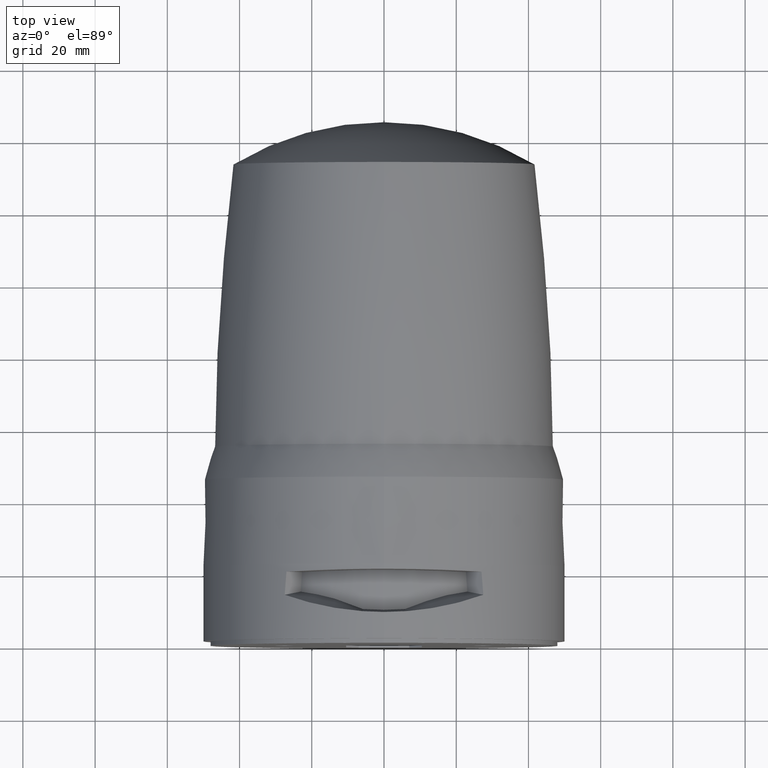
[diagram: clean part render]
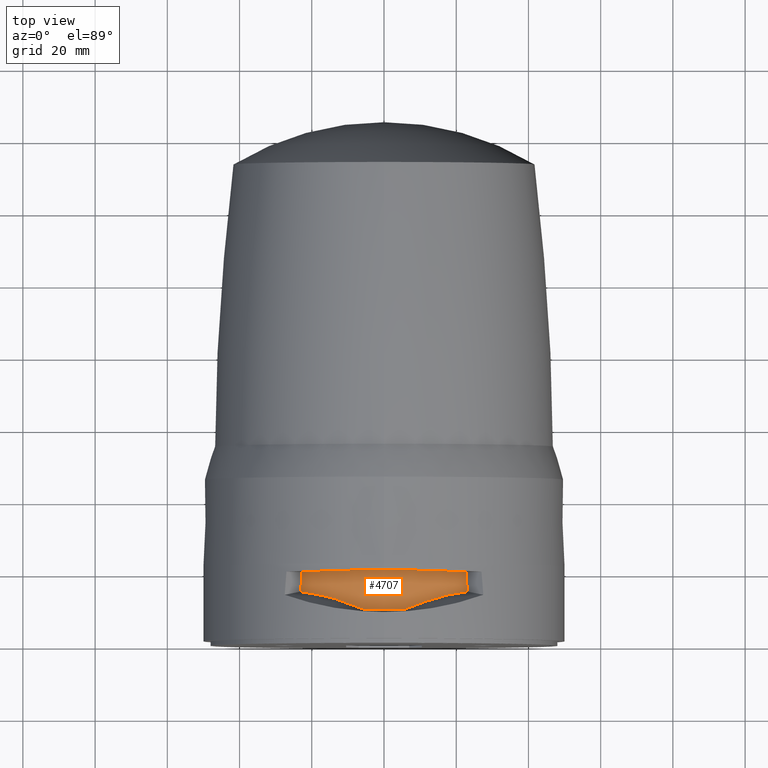
[diagram: same view with one face highlighted and labeled with its STEP entity id]
A machine part, top view. The second image highlights one B-rep face of the part: STEP entity #4707.
In plain terms, the highlighted cylindrical surface (partial cylindrical patch) has radius 45 mm, axis along (0, 1, 0).
Its self-contained STEP definition (entity closure, byte-faithful):
#273 = B_SPLINE_CURVE_WITH_KNOTS ( 'NONE', 3,
 ( #10234, #8233, #13553, #5959 ),
 .UNSPECIFIED., .F., .F.,
 ( 4, 4 ),
 ( 0.000000000000000000, 1.000000000000000000 ),
 .UNSPECIFIED. ) ;
#405 = CARTESIAN_POINT ( 'NONE',  ( -11.84227999931658637, 20.13844801156305309, 43.41382988349019456 ) ) ;
#478 = CARTESIAN_POINT ( 'NONE',  ( -13.61859326529472192, 20.09246608839858084, 42.89247271123664973 ) ) ;
#492 = CARTESIAN_POINT ( 'NONE',  ( 17.47202003937134052, 13.32290729893481540, 41.47693349906018767 ) ) ;
#543 = CARTESIAN_POINT ( 'NONE',  ( -7.108346958404923477, 20.23015040799696962, 44.43572263607795492 ) ) ;
#590 = VERTEX_POINT ( 'NONE', #4851 ) ;
#606 = CARTESIAN_POINT ( 'NONE',  ( -11.81381435198009733, 20.13913577782215114, 43.42158459702788775 ) ) ;
#614 = CARTESIAN_POINT ( 'NONE',  ( -22.68385494245774936, 19.75717980351269887, 38.86441463536455387 ) ) ;
#677 = CARTESIAN_POINT ( 'NONE',  ( -0.4474314387408208638, 20.28148104778522054, 44.99806994582864661 ) ) ;
#739 = FACE_OUTER_BOUND ( 'NONE', #11546, .T. ) ;
#819 = CARTESIAN_POINT ( 'NONE',  ( -20.32310649052906726, 13.86176357159585137, 40.17978063508935094 ) ) ;
#891 = CARTESIAN_POINT ( 'NONE',  ( -16.04546611978050308, 13.03156904659603121, 42.06981511062953416 ) ) ;
#960 = CARTESIAN_POINT ( 'NONE',  ( 11.69101140142844386, 11.61625066659239458, 43.46128276996401496 ) ) ;
#1252 = ORIENTED_EDGE ( 'NONE', *, *, #7621, .F. ) ;
#1372 = CARTESIAN_POINT ( 'NONE',  ( -17.45062764641732400, 19.97079657228621130, 41.47863168058091787 ) ) ;
#1444 = CARTESIAN_POINT ( 'NONE',  ( -9.764286546340825268, 20.18527098869021685, 43.93923810953449305 ) ) ;
#1510 = CARTESIAN_POINT ( 'NONE',  ( -12.18426669837315757, 20.13007846549800561, 43.31937539521679525 ) ) ;
#1577 = CARTESIAN_POINT ( 'NONE',  ( -6.348193231950924442, 20.24057074130339728, 44.55025150755220409 ) ) ;
#1643 = CARTESIAN_POINT ( 'NONE',  ( -8.300912586125775761, 20.21155618623086170, 44.23069851903699146 ) ) ;
#1707 = CARTESIAN_POINT ( 'NONE',  ( 10.87144729791653042, 20.16120484420215675, 43.66846997721839330 ) ) ;
#1716 = CARTESIAN_POINT ( 'NONE',  ( -7.336427481138954043, 9.908226507313999676, 44.40425105732058597 ) ) ;
#1781 = CARTESIAN_POINT ( 'NONE',  ( 23.07456759984749795, 14.32713572513618061, 38.63372011701785169 ) ) ;
#1906 = DIRECTION ( 'NONE',  ( -1.000000000000000000, 0.000000000000000000, 0.000000000000000000 ) ) ;
#1920 = CARTESIAN_POINT ( 'NONE',  ( 13.13326848133772273, 12.14672568946019382, 43.04741695614502106 ) ) ;
#1928 = B_SPLINE_CURVE_WITH_KNOTS ( 'NONE', 3,
 ( #2783, #9119, #3949, #13405, #6976, #4922 ),
 .UNSPECIFIED., .F., .F.,
 ( 4, 2, 4 ),
 ( 0.000000000000000000, 0.5000000000000000000, 1.000000000000000000 ),
 .UNSPECIFIED. ) ;
#2124 = CARTESIAN_POINT ( 'NONE',  ( 7.330817702946668568, 9.906218642812557817, 44.40513177967530112 ) ) ;
#2516 = B_SPLINE_CURVE_WITH_KNOTS ( 'NONE', 3,
 ( #6944, #11168, #11300, #13306 ),
 .UNSPECIFIED., .F., .F.,
 ( 4, 4 ),
 ( 0.02008847092973000195, 0.02014648777180919753 ),
 .UNSPECIFIED. ) ;
#2551 = CARTESIAN_POINT ( 'NONE',  ( 11.72111557423630046, 20.14147446952945941, 43.44669752839927668 ) ) ;
#2615 = CARTESIAN_POINT ( 'NONE',  ( 10.49513001006209478, 20.16936982621216146, 43.75991380163826250 ) ) ;
#2686 = CARTESIAN_POINT ( 'NONE',  ( 15.08837701329801106, 20.05260262494076784, 42.44155854232884906 ) ) ;
#2749 = CARTESIAN_POINT ( 'NONE',  ( -6.755319006678095484, 20.23519244297324704, 44.49117922385988066 ) ) ;
#2783 = CARTESIAN_POINT ( 'NONE',  ( -5.835167098255180207, 9.396942779877718976, 44.62007196505935269 ) ) ;
#2817 = CARTESIAN_POINT ( 'NONE',  ( 11.53204365006813781, 20.14597508731123909, 43.49735422020866338 ) ) ;
#2826 = CARTESIAN_POINT ( 'NONE',  ( -17.48606636844611018, 13.33383861294100470, 41.49314295480139236 ) ) ;
#2981 = ORIENTED_EDGE ( 'NONE', *, *, #12461, .T. ) ;
#3109 = CARTESIAN_POINT ( 'NONE',  ( 23.07456759984749795, 14.32713572513618061, 38.63372011701785169 ) ) ;
#3377 = CARTESIAN_POINT ( 'NONE',  ( -17.37355232813078842, 19.97353012843244713, 41.51095932691494284 ) ) ;
#3445 = CARTESIAN_POINT ( 'NONE',  ( -17.53553160300661773, 19.96777367400675018, 41.44285628955167056 ) ) ;
#3585 = CARTESIAN_POINT ( 'NONE',  ( -6.044950432993923428, 20.24438795144969205, 44.59215274847466759 ) ) ;
#3599 = CARTESIAN_POINT ( 'NONE',  ( 20.32867369142970304, 13.86279336092435521, 40.17718726464759271 ) ) ;
#3652 = CARTESIAN_POINT ( 'NONE',  ( -5.973015986555767043, 20.24526982200256597, 44.60183060656434151 ) ) ;
#3665 = CARTESIAN_POINT ( 'NONE',  ( 15.30072295266442772, 12.81380023081596953, 42.32578259448999347 ) ) ;
#3677 = EDGE_CURVE ( 'NONE', #590, #12252, #2516, .T. ) ;
#3716 = CARTESIAN_POINT ( 'NONE',  ( 9.743757488905458786, 20.18509334203292838, 43.93571207299783055 ) ) ;
#3785 = CARTESIAN_POINT ( 'NONE',  ( -6.001781105626609936, 20.24491794523314425, 44.59796909222418293 ) ) ;
#3793 = CARTESIAN_POINT ( 'NONE',  ( -6.591373112126814426, 9.642633378146747702, 44.52117954295964353 ) ) ;
#3842 = CARTESIAN_POINT ( 'NONE',  ( 11.69747340798244650, 20.14204075323819509, 43.45307364410666651 ) ) ;
#3852 = CARTESIAN_POINT ( 'NONE',  ( -23.07456673256490021, 14.32713740382510004, 38.63372184351669603 ) ) ;
#3949 = CARTESIAN_POINT ( 'NONE',  ( -1.980107783807446564, 9.166439997265158013, 44.99998205436671128 ) ) ;
#4405 = CARTESIAN_POINT ( 'NONE',  ( -17.70656729597715184, 19.96164686148595635, 41.37026271727327753 ) ) ;
#4413 = EDGE_CURVE ( 'NONE', #12721, #6918, #1928, .T. ) ;
#4596 = CARTESIAN_POINT ( 'NONE',  ( 22.68669821129580200, 19.73812288906085044, 38.86275511473390054 ) ) ;
#4616 = CARTESIAN_POINT ( 'NONE',  ( 11.73687790586002322, 20.14109654361994828, 43.44244198636407361 ) ) ;
#4651 = EDGE_CURVE ( 'NONE', #12252, #7370, #12296, .T. ) ;
#4686 = CARTESIAN_POINT ( 'NONE',  ( 9.244524971810312408, 20.19476716224312796, 44.04345956278331897 ) ) ;
#4703 = ORIENTED_EDGE ( 'NONE', *, *, #4413, .T. ) ;
#4707 = ADVANCED_FACE ( 'NONE', ( #739 ), #9354, .T. ) ;
#4753 = CARTESIAN_POINT ( 'NONE',  ( 11.31164629407964561, 20.15114178006222190, 43.55545799119414596 ) ) ;
#4851 = CARTESIAN_POINT ( 'NONE',  ( -22.69233895745735197, 19.69999999999999929, 38.85946155880014885 ) ) ;
#4922 = CARTESIAN_POINT ( 'NONE',  ( 5.835173014087679633, 9.396888925484050858, 44.62007121915029728 ) ) ;
#5099 = CARTESIAN_POINT ( 'NONE',  ( 8.798793948397360509, 10.46118286204745473, 44.13771450378703776 ) ) ;
#5192 = CARTESIAN_POINT ( 'NONE',  ( -21.68691499671024303, 19.80313757112707052, 39.44629503489869649 ) ) ;
#5293 = CARTESIAN_POINT ( 'NONE',  ( 22.68385494245735146, 19.75717980351450009, 38.86441463536475283 ) ) ;
#5298 = ORIENTED_EDGE ( 'NONE', *, *, #10455, .F. ) ;
#5393 = ORIENTED_EDGE ( 'NONE', *, *, #3677, .F. ) ;
#5606 = CARTESIAN_POINT ( 'NONE',  ( 22.69233896038864984, 19.69999999999999929, 38.85946155708834482 ) ) ;
#5623 = CARTESIAN_POINT ( 'NONE',  ( 22.68952621902035105, 19.71906295528859943, 38.86110408320630683 ) ) ;
#5689 = CARTESIAN_POINT ( 'NONE',  ( 5.835173014087679633, 9.396888925484050858, 44.62007121915029728 ) ) ;
#5715 = CARTESIAN_POINT ( 'NONE',  ( -2.475719259794731286, 20.27564768032336318, 44.93452449260052362 ) ) ;
#5728 = CARTESIAN_POINT ( 'NONE',  ( 21.72079082017842211, 14.09148404172576363, 39.44228356167082694 ) ) ;
#5786 = CARTESIAN_POINT ( 'NONE',  ( 11.74636118767424797, 20.14086889875486008, 43.43987846727977598 ) ) ;
#5915 = CARTESIAN_POINT ( 'NONE',  ( 18.75131896174210766, 19.92621291701665953, 40.95497039585611532 ) ) ;
#5959 = CARTESIAN_POINT ( 'NONE',  ( -23.07456673256490021, 14.32713740382510004, 38.63372184351669603 ) ) ;
#5997 = CARTESIAN_POINT ( 'NONE',  ( -5.835167098255180207, 9.396942779877718976, 44.62007196505935269 ) ) ;
#6056 = CARTESIAN_POINT ( 'NONE',  ( 22.95630234514583989, 17.91102563564936645, 38.70531771772397889 ) ) ;
#6133 = CARTESIAN_POINT ( 'NONE',  ( 10.97021764374691521, 11.32823107382306205, 43.64865744905547729 ) ) ;
#6134 = CARTESIAN_POINT ( 'NONE',  ( -23.07456673256490021, 14.32713740382510004, 38.63372184351669603 ) ) ;
#6200 = CARTESIAN_POINT ( 'NONE',  ( 13.85475107366735514, 12.38844558904360760, 42.82090456537481060 ) ) ;
#6480 = CARTESIAN_POINT ( 'NONE',  ( 22.68385494245735146, 19.75717980351450009, 38.86441463536475283 ) ) ;
#6604 = CARTESIAN_POINT ( 'NONE',  ( -22.68385494245774936, 19.75717980351269887, 38.86441463536455387 ) ) ;
#6743 = CARTESIAN_POINT ( 'NONE',  ( -11.80128016369711830, 20.13943814518961162, 43.42499348231668677 ) ) ;
#6811 = CARTESIAN_POINT ( 'NONE',  ( -15.47638757500100759, 20.03794450039711350, 42.26635557363588447 ) ) ;
#6872 = CARTESIAN_POINT ( 'NONE',  ( -3.955888331365400745, 20.26669100317144512, 44.83665377533303342 ) ) ;
#6918 = VERTEX_POINT ( 'NONE', #5689 ) ;
#6942 = CARTESIAN_POINT ( 'NONE',  ( 1.877760257181229298, 20.27903999960852488, 44.97145850997019068 ) ) ;
#6944 = CARTESIAN_POINT ( 'NONE',  ( -22.69233895745735197, 19.69999999999999929, 38.85946155880014885 ) ) ;
#6976 = CARTESIAN_POINT ( 'NONE',  ( 3.929725068646205077, 9.242985367429485066, 44.86925546009849342 ) ) ;
#7009 = CARTESIAN_POINT ( 'NONE',  ( -4.592996408837750682E-44, 1.197999999999999954, 5.925591757886279539E-16 ) ) ;
#7090 = CARTESIAN_POINT ( 'NONE',  ( -13.88143112648262445, 12.39693140413350925, 42.81223483411741881 ) ) ;
#7094 = CARTESIAN_POINT ( 'NONE',  ( 9.524671975889241082, 10.75104256380412160, 43.98672067803956764 ) ) ;
#7370 = VERTEX_POINT ( 'NONE', #6480 ) ;
#7621 = EDGE_CURVE ( 'NONE', #9710, #6918, #12361, .T. ) ;
#7645 = CARTESIAN_POINT ( 'NONE',  ( -17.40832938214171577, 19.97229795535639241, 41.49639008214651170 ) ) ;
#7785 = CARTESIAN_POINT ( 'NONE',  ( -12.92840454635192948, 20.11102006801234410, 43.10352791130546990 ) ) ;
#7853 = CARTESIAN_POINT ( 'NONE',  ( -0.8771358370383675052, 20.28097932941360781, 44.99262666301878255 ) ) ;
#7913 = CARTESIAN_POINT ( 'NONE',  ( -11.88498546005452816, 20.13741432407068288, 43.40217337059469571 ) ) ;
#7982 = CARTESIAN_POINT ( 'NONE',  ( -4.946682115903085375, 20.25773433912778998, 44.73860953100828652 ) ) ;
#8049 = CARTESIAN_POINT ( 'NONE',  ( -11.98468049749338427, 20.13498810790766669, 43.37480342947512213 ) ) ;
#8088 = B_SPLINE_CURVE_WITH_KNOTS ( 'NONE', 3,
 ( #9432, #5623, #4596, #5293 ),
 .UNSPECIFIED., .F., .F.,
 ( 4, 4 ),
 ( 0.02006860106515724954, 0.02012661791550789808 ),
 .UNSPECIFIED. ) ;
#8125 = CARTESIAN_POINT ( 'NONE',  ( 23.08292284289445462, 16.12007087736142807, 38.62872982304882186 ) ) ;
#8233 = CARTESIAN_POINT ( 'NONE',  ( -22.95630273479275729, 17.91102235810859966, 38.70531749021279211 ) ) ;
#8266 = CARTESIAN_POINT ( 'NONE',  ( -8.809702371444803504, 10.46542092983013994, 44.13558455797462443 ) ) ;
#8362 = CARTESIAN_POINT ( 'NONE',  ( -19.41129881672941693, 19.89742785806415171, 40.60133445584583711 ) ) ;
#8560 = VERTEX_POINT ( 'NONE', #5606 ) ;
#8623 = CARTESIAN_POINT ( 'NONE',  ( -17.39023451904800410, 19.97293925474831155, 41.50397323229974944 ) ) ;
#8770 = ORIENTED_EDGE ( 'NONE', *, *, #9015, .T. ) ;
#8826 = CARTESIAN_POINT ( 'NONE',  ( -6.145830187613428919, 20.24313601550825226, 44.57841228826514879 ) ) ;
#8890 = CARTESIAN_POINT ( 'NONE',  ( 11.64231768472713746, 20.14335784577834332, 43.46790089498949783 ) ) ;
#9015 = EDGE_CURVE ( 'NONE', #590, #12046, #273, .T. ) ;
#9020 = CARTESIAN_POINT ( 'NONE',  ( -5.959859876715237981, 20.24543022770979661, 44.60359086148300634 ) ) ;
#9084 = CARTESIAN_POINT ( 'NONE',  ( 22.68385494245735146, 19.75717980351450009, 38.86441463536475283 ) ) ;
#9119 = CARTESIAN_POINT ( 'NONE',  ( -3.928903099187118553, 9.243328333422386578, 44.86936269594036730 ) ) ;
#9233 = CARTESIAN_POINT ( 'NONE',  ( 6.588498513759169839, 9.641699224054431028, 44.52155564274019639 ) ) ;
#9354 = CYLINDRICAL_SURFACE ( 'NONE', #10690, 45.00000000000000000 ) ;
#9432 = CARTESIAN_POINT ( 'NONE',  ( 22.69233896038864984, 19.69999999999999929, 38.85946155708834482 ) ) ;
#9646 = CARTESIAN_POINT ( 'NONE',  ( -18.05353416591015403, 19.94906526462957430, 41.22083624520359280 ) ) ;
#9710 = VERTEX_POINT ( 'NONE', #3109 ) ;
#9759 = ORIENTED_EDGE ( 'NONE', *, *, #4651, .F. ) ;
#9923 = CARTESIAN_POINT ( 'NONE',  ( -0.2326389474847913308, 20.28161082205240717, 44.99947232919016216 ) ) ;
#9938 = CARTESIAN_POINT ( 'NONE',  ( 18.19311401255323801, 13.46541124992836203, 41.16583462246379099 ) ) ;
#9992 = CARTESIAN_POINT ( 'NONE',  ( -12.58422585428273344, 20.12002958182351975, 43.20574658410210844 ) ) ;
#10060 = CARTESIAN_POINT ( 'NONE',  ( -1.245709450860991163, 20.28013366689715724, 44.98342645905845671 ) ) ;
#10234 = CARTESIAN_POINT ( 'NONE',  ( -22.69233895745735197, 19.69999999999999929, 38.85946155880014885 ) ) ;
#10344 = CARTESIAN_POINT ( 'NONE',  ( 5.835173014087679633, 9.396888925484050858, 44.62007121915029728 ) ) ;
#10455 = EDGE_CURVE ( 'NONE', #12721, #12046, #11418, .T. ) ;
#10685 = CARTESIAN_POINT ( 'NONE',  ( -18.98171417658942062, 19.91418182994908648, 40.80342480558029195 ) ) ;
#10690 = AXIS2_PLACEMENT_3D ( 'NONE', #7009, #12403, #1906 ) ;
#10752 = CARTESIAN_POINT ( 'NONE',  ( -16.41654740873860518, 20.00739552575010549, 41.91129284402511956 ) ) ;
#10827 = CARTESIAN_POINT ( 'NONE',  ( -18.35927240941600758, 19.93770535729101923, 41.08525303329923872 ) ) ;
#10895 = CARTESIAN_POINT ( 'NONE',  ( 13.36041894237212801, 20.10209114567265942, 43.00317849628144273 ) ) ;
#10960 = CARTESIAN_POINT ( 'NONE',  ( -0.1405962295635562465, 20.28164050663709972, 44.99979100208659588 ) ) ;
#11031 = CARTESIAN_POINT ( 'NONE',  ( -7.819668991822037896, 20.21947052661496258, 44.31808601547342619 ) ) ;
#11102 = CARTESIAN_POINT ( 'NONE',  ( 7.751355206678907983, 20.22142083395284118, 44.33944208168064449 ) ) ;
#11166 = CARTESIAN_POINT ( 'NONE',  ( 6.761941921118959087, 20.23603411574966415, 44.50043404860421958 ) ) ;
#11168 = CARTESIAN_POINT ( 'NONE',  ( -22.68952621706609918, 19.71906295524025055, 38.86110408434725372 ) ) ;
#11175 = CARTESIAN_POINT ( 'NONE',  ( -9.538146760943771341, 10.75642974557321097, 43.98384606255203977 ) ) ;
#11300 = CARTESIAN_POINT ( 'NONE',  ( -22.68669821031885192, 19.73812288901185141, 38.86275511530409688 ) ) ;
#11418 = B_SPLINE_CURVE_WITH_KNOTS ( 'NONE', 3,
 ( #5997, #3793, #1716, #8266, #11175, #13248, #12277, #12482, #7090, #891, #2826, #819, #12206, #3852 ),
 .UNSPECIFIED., .F., .F.,
 ( 4, 2, 2, 2, 2, 2, 4 ),
 ( 3.127317220692751144E-18, 0.002396455518847635021, 0.004792911037695267440, 0.007189366556542898558, 0.009585822075390531410, 0.01437873311308579538, 0.01917164415078106282 ),
 .UNSPECIFIED. ) ;
#11518 = ORIENTED_EDGE ( 'NONE', *, *, #12478, .T. ) ;
#11546 = EDGE_LOOP ( 'NONE', ( #2981, #11518, #9759, #5393, #8770, #5298, #4703, #1252 ) ) ;
#12000 = CARTESIAN_POINT ( 'NONE',  ( 0.9225804933863229751, 20.28169834676485905, 45.00036997598439825 ) ) ;
#12046 = VERTEX_POINT ( 'NONE', #6134 ) ;
#12062 = B_SPLINE_CURVE_WITH_KNOTS ( 'NONE', 3,
 ( #1781, #8125, #6056, #12343 ),
 .UNSPECIFIED., .F., .F.,
 ( 4, 4 ),
 ( 0.000000000000000000, 1.000000000000000000 ),
 .UNSPECIFIED. ) ;
#12067 = CARTESIAN_POINT ( 'NONE',  ( 3.812661482437630145, 20.26780800014777029, 44.84888425699715953 ) ) ;
#12136 = CARTESIAN_POINT ( 'NONE',  ( -10.76618955214289386, 20.16435663344034879, 43.70588451819825337 ) ) ;
#12195 = CARTESIAN_POINT ( 'NONE',  ( -14.08116085057534583, 20.07938342336102622, 42.74294689204494802 ) ) ;
#12206 = CARTESIAN_POINT ( 'NONE',  ( -21.72116206023656915, 14.09154866938236772, 39.44206177794900015 ) ) ;
#12252 = VERTEX_POINT ( 'NONE', #614 ) ;
#12267 = CARTESIAN_POINT ( 'NONE',  ( -1.983333856436023002, 20.27788659328386700, 44.95894753498681951 ) ) ;
#12277 = CARTESIAN_POINT ( 'NONE',  ( -11.71261574776069025, 11.62468089171210117, 43.45550885860515677 ) ) ;
#12296 = B_SPLINE_CURVE_WITH_KNOTS ( 'NONE', 3,
 ( #6604, #5192, #13610, #8362, #10685, #10827, #9646, #4405, #3445, #1372, #7645, #8623, #12824, #3377, #10752, #6811, #12195, #478, #7785, #9992, #1510, #8049, #7913, #405, #606, #6743, #12136, #1444, #1643, #11031, #543, #2749, #1577, #8826, #3585, #3785, #3652, #9020, #7982, #6872, #5715, #12267, #10060, #7853, #677, #9923, #10960, #13303, #13035, #12000, #6942, #12067, #13236, #11166, #11102, #4686, #3716, #2615, #1707, #4753, #2817, #8890, #3842, #2551, #4616, #5786, #10895, #2686, #5915, #13104, #9084 ),
 .UNSPECIFIED., .F., .F.,
 ( 4, 2, 2, 1, 1, 1, 1, 1, 2, 2, 2, 2, 1, 1, 1, 1, 2, 2, 2, 2, 1, 1, 1, 1, 2, 2, 2, 2, 1, 1, 1, 2, 2, 2, 2, 2, 2, 1, 1, 1, 1, 1, 2, 2, 2, 4 ),
 ( 0.000000000000000000, 0.06249999999997617184, 0.09374999999996444511, 0.1093749999999585887, 0.1171874999999556605, 0.1210937499999543976, 0.1230468749999538980, 0.1240234374999537453, 0.1245117187499537731, 0.1249999999999538147, 0.1874999999999685529, 0.2187499999999759914, 0.2343749999999796829, 0.2421874999999813760, 0.2460937499999822364, 0.2480468749999826528, 0.2490234374999827915, 0.2499999999999829581, 0.3124999999999915068, 0.3437499999999957256, 0.3593749999999978351, 0.3671874999999988898, 0.3710937499999993894, 0.3730468749999996669, 0.3740234374999997780, 0.3749999999999998890, 0.4375000000000042744, 0.4687500000000065503, 0.4843750000000076050, 0.4921875000000082157, 0.4960937500000084932, 0.4980468750000086042, 0.5000000000000087708, 0.5625000000000131006, 0.6250000000000175415, 0.6875000000000218714, 0.7187500000000239808, 0.7343750000000249800, 0.7421875000000255351, 0.7460937500000257572, 0.7480468750000258682, 0.7490234375000259792, 0.7495117187500259792, 0.7500000000000259792, 0.8750000000000129896, 1.000000000000000000 ),
 .UNSPECIFIED. ) ;
#12313 = CARTESIAN_POINT ( 'NONE',  ( -5.835167098255180207, 9.396942779877718976, 44.62007196505935269 ) ) ;
#12343 = CARTESIAN_POINT ( 'NONE',  ( 22.69233896038864984, 19.69999999999999929, 38.85946155708834482 ) ) ;
#12361 = B_SPLINE_CURVE_WITH_KNOTS ( 'NONE', 3,
 ( #13049, #5728, #3599, #9938, #492, #13118, #3665, #6200, #1920, #960, #6133, #7094, #5099, #2124, #9233, #10344 ),
 .UNSPECIFIED., .F., .F.,
 ( 4, 2, 2, 2, 2, 2, 2, 4 ),
 ( 0.000000000000000000, 0.004770635313286502276, 0.007155952969929753847, 0.009541270626573004551, 0.01192658828321625612, 0.01431190593985950769, 0.01669722359650275753, 0.01908254125314600563 ),
 .UNSPECIFIED. ) ;
#12403 = DIRECTION ( 'NONE',  ( 0.000000000000000000, 1.000000000000000000, 0.000000000000000000 ) ) ;
#12461 = EDGE_CURVE ( 'NONE', #9710, #8560, #12062, .T. ) ;
#12478 = EDGE_CURVE ( 'NONE', #8560, #7370, #8088, .T. ) ;
#12482 = CARTESIAN_POINT ( 'NONE',  ( -13.15946553081545645, 12.15586100808709880, 43.03945962437592243 ) ) ;
#12721 = VERTEX_POINT ( 'NONE', #12313 ) ;
#12824 = CARTESIAN_POINT ( 'NONE',  ( -17.37817860527053426, 19.97336631051231137, 41.50902254633930255 ) ) ;
#13035 = CARTESIAN_POINT ( 'NONE',  ( -0.04727002759735412368, 20.28165872094835009, 44.99998477483212866 ) ) ;
#13049 = CARTESIAN_POINT ( 'NONE',  ( 23.07456759984749795, 14.32713572513618061, 38.63372011701785169 ) ) ;
#13104 = CARTESIAN_POINT ( 'NONE',  ( 20.68803863152828271, 19.84918468888288956, 40.02930565749041136 ) ) ;
#13118 = CARTESIAN_POINT ( 'NONE',  ( 16.02517166568469520, 12.99751076793231874, 42.05712032256834476 ) ) ;
#13236 = CARTESIAN_POINT ( 'NONE',  ( 4.792499344387286087, 20.25922843315236221, 44.75516958668997347 ) ) ;
#13248 = CARTESIAN_POINT ( 'NONE',  ( -10.98878750952045635, 11.33563877873003456, 43.64403174728685997 ) ) ;
#13303 = CARTESIAN_POINT ( 'NONE',  ( -0.07923673184974322492, 20.28165453491515891, 44.99994074477235984 ) ) ;
#13306 = CARTESIAN_POINT ( 'NONE',  ( -22.68385494245774936, 19.75717980351269887, 38.86441463536455387 ) ) ;
#13405 = CARTESIAN_POINT ( 'NONE',  ( 1.979292033588517130, 9.166114870174798313, 45.00001794193634197 ) ) ;
#13553 = CARTESIAN_POINT ( 'NONE',  ( -23.08292276498664108, 16.12006815938362436, 38.62872986999104086 ) ) ;
#13610 = CARTESIAN_POINT ( 'NONE',  ( -20.74259840029483115, 19.84366026445225373, 39.94680470057924992 ) ) ;